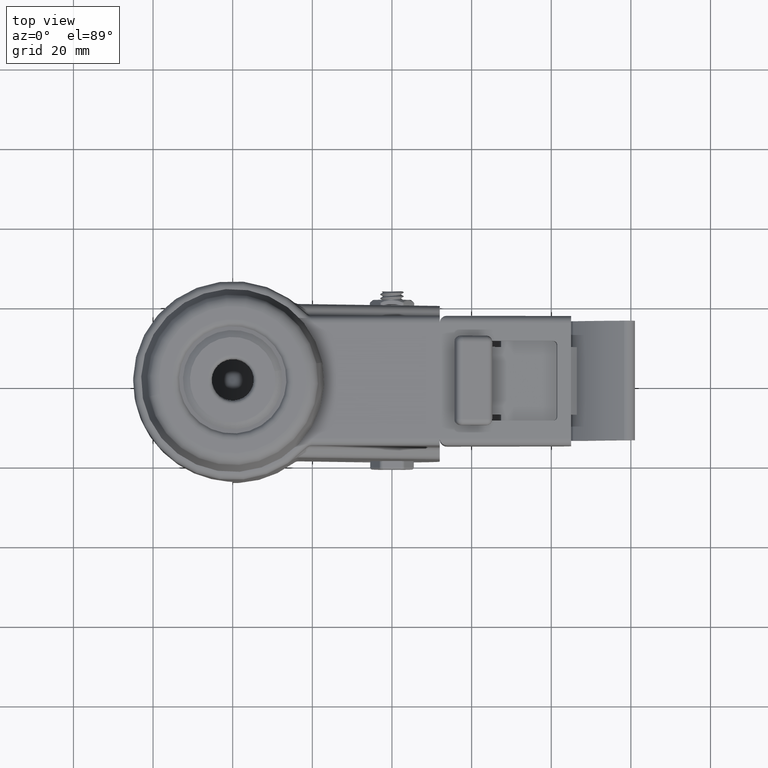
[diagram: clean part render]
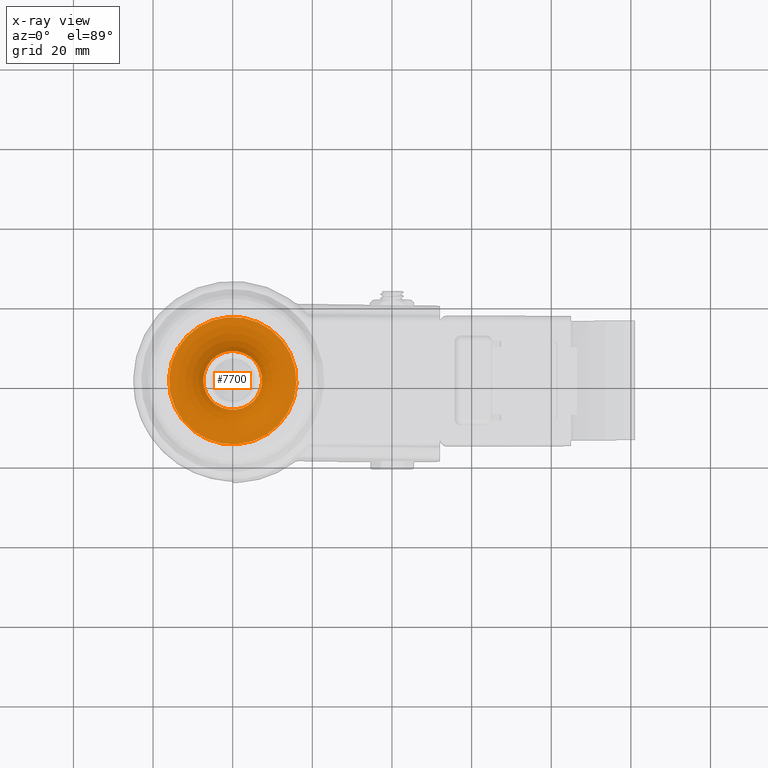
[diagram: x-ray — body ghosted, one internal face saturated and labeled with its STEP entity id]
A machine part, top view, then the same camera in x-ray: the body is ghosted and one INTERNAL B-rep face — a face not visible from any outside direction — is saturated and labeled: STEP entity #7700.
In plain terms, the highlighted toroidal blend (fillet) surface has major radius 16 mm and minor (blend) radius 9.8084 mm.
Its self-contained STEP definition (entity closure, byte-faithful):
#753=TOROIDAL_SURFACE('',#8317,16.,9.80835647192134);
#800=FACE_OUTER_BOUND('',#1273,.T.);
#1273=EDGE_LOOP('',(#5342,#5343,#5344,#5345));
#2940=CIRCLE('',#8318,16.);
#2941=CIRCLE('',#8319,9.80835647192134);
#2942=CIRCLE('',#8320,7.38030615433009);
#3360=VERTEX_POINT('',#11701);
#3361=VERTEX_POINT('',#11703);
#4128=EDGE_CURVE('',#3360,#3360,#2940,.T.);
#4129=EDGE_CURVE('',#3360,#3361,#2941,.T.);
#4130=EDGE_CURVE('',#3361,#3361,#2942,.T.);
#5342=ORIENTED_EDGE('',*,*,#4128,.F.);
#5343=ORIENTED_EDGE('',*,*,#4129,.T.);
#5344=ORIENTED_EDGE('',*,*,#4130,.T.);
#5345=ORIENTED_EDGE('',*,*,#4129,.F.);
#7700=ADVANCED_FACE('',(#800),#753,.F.);
#8317=AXIS2_PLACEMENT_3D('',#11700,#9300,#9301);
#8318=AXIS2_PLACEMENT_3D('',#11702,#9302,#9303);
#8319=AXIS2_PLACEMENT_3D('',#11704,#9304,#9305);
#8320=AXIS2_PLACEMENT_3D('',#11705,#9306,#9307);
#9300=DIRECTION('center_axis',(1.86968966676727E-16,0.,-1.));
#9301=DIRECTION('ref_axis',(-1.,0.,-1.72071867626758E-16));
#9302=DIRECTION('center_axis',(1.86968966676727E-16,0.,-1.));
#9303=DIRECTION('ref_axis',(-1.,0.,-1.86968966676727E-16));
#9304=DIRECTION('center_axis',(1.22464679914735E-16,1.,2.28970946580542E-32));
#9305=DIRECTION('ref_axis',(1.,-1.22464679914735E-16,1.72071867626758E-16));
#9306=DIRECTION('center_axis',(1.86968966676727E-16,0.,-1.));
#9307=DIRECTION('ref_axis',(-1.,0.,-1.86968966676727E-16));
#11700=CARTESIAN_POINT('Origin',(0.,0.,-6.51375687829251));
#11701=CARTESIAN_POINT('',(16.,-1.95943487863577E-15,-16.3221133502139));
#11702=CARTESIAN_POINT('Origin',(-1.17681364516945E-16,0.,-16.3221133502139));
#11703=CARTESIAN_POINT('',(7.38030615433009,-9.03826830862785E-16,-11.1940063040392));
#11704=CARTESIAN_POINT('Origin',(16.,-1.95943487863577E-15,-6.51375687829251));
#11705=CARTESIAN_POINT('Origin',(-1.07647823994786E-15,0.,-11.1940063040392));